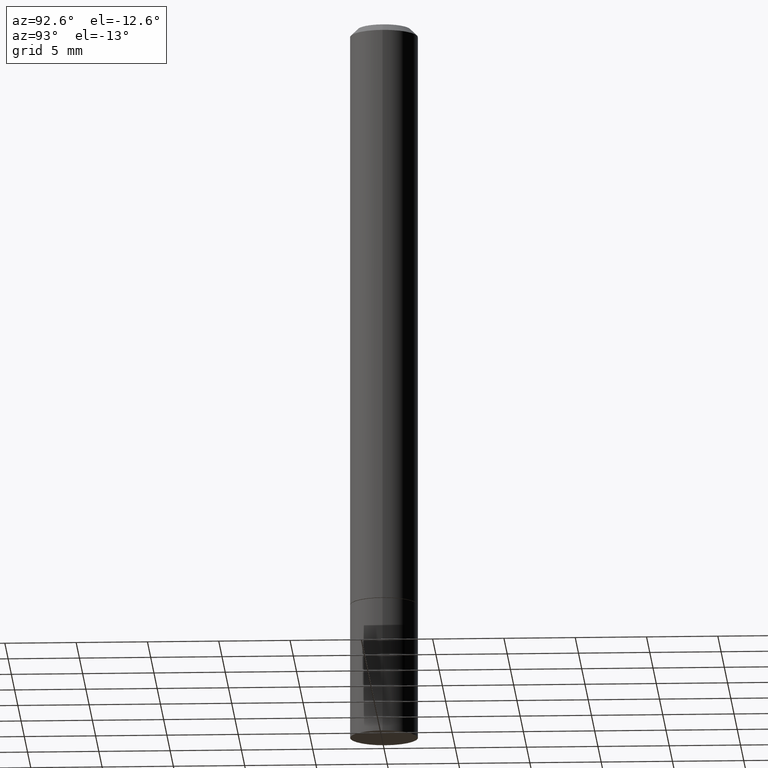
[diagram: clean part render]
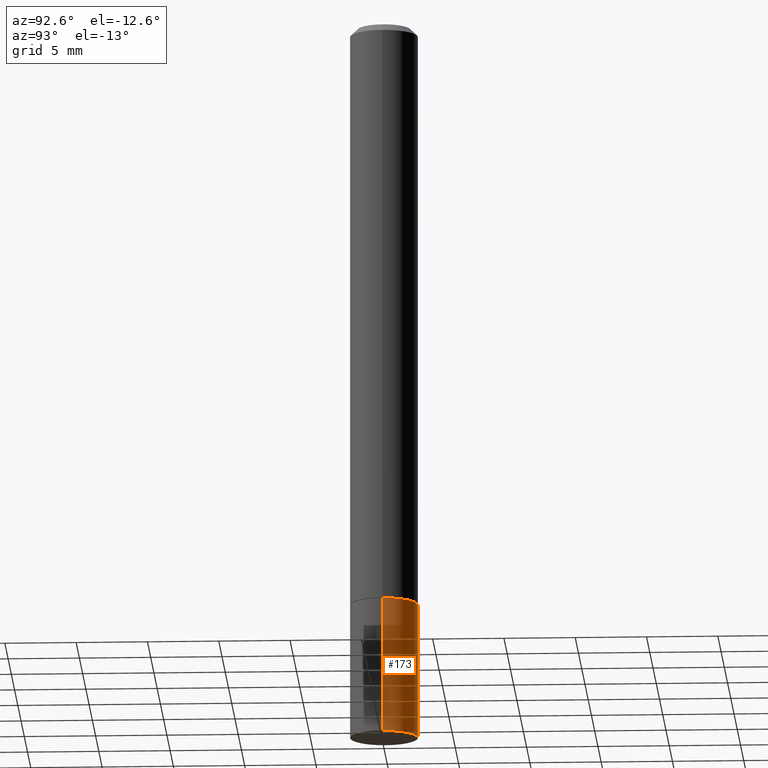
[diagram: same view with one face highlighted and labeled with its STEP entity id]
A machine part, auxiliary view. The second image highlights one B-rep face of the part: STEP entity #173.
In plain terms, the highlighted cylindrical surface (edge-blend (fillet) strip) has radius 2.3813 mm, axis along (-0, 0, 1).
Its self-contained STEP definition (entity closure, byte-faithful):
#1 = ORIENTED_EDGE ( 'NONE', *, *, #70, .F. ) ;
#4 = CARTESIAN_POINT ( 'NONE',  ( 0.09375000000000001388, -6.328309926653198928E-15, -1.625000000000000000 ) ) ;
#16 = CARTESIAN_POINT ( 'NONE',  ( 0.09375000000000001388, -6.546527510330875041E-16, 4.571415727308690506E-30 ) ) ;
#38 = FACE_OUTER_BOUND ( 'NONE', #60, .T. ) ;
#40 = CARTESIAN_POINT ( 'NONE',  ( 3.973886810050846970E-29, -5.673657175620112213E-15, -1.625000000000000000 ) ) ;
#50 = AXIS2_PLACEMENT_3D ( 'NONE', #182, #348, #266 ) ;
#52 = VERTEX_POINT ( 'NONE', #71 ) ;
#60 = EDGE_LOOP ( 'NONE', ( #256, #339, #1, #309 ) ) ;
#66 = CYLINDRICAL_SURFACE ( 'NONE', #50, 0.09375000000000001388 ) ;
#70 = EDGE_CURVE ( 'NONE', #126, #52, #106, .T. ) ;
#71 = CARTESIAN_POINT ( 'NONE',  ( -0.09375000000000001388, -5.662176111878106581E-15, -1.625000000000000000 ) ) ;
#89 = CARTESIAN_POINT ( 'NONE',  ( -0.09375000000000001388, -5.662176111878106581E-15, -2.000000000000000000 ) ) ;
#106 = CIRCLE ( 'NONE', #326, 0.09375000000000001388 ) ;
#122 = EDGE_CURVE ( 'NONE', #214, #157, #359, .T. ) ;
#126 = VERTEX_POINT ( 'NONE', #4 ) ;
#128 = LINE ( 'NONE', #16, #354 ) ;
#148 = DIRECTION ( 'NONE',  ( -2.445468806185136597E-29, 3.491481338843145583E-15, 1.000000000000000000 ) ) ;
#157 = VERTEX_POINT ( 'NONE', #89 ) ;
#173 = ADVANCED_FACE ( 'NONE', ( #38 ), #66, .T. ) ;
#177 = DIRECTION ( 'NONE',  ( -2.445468806185136597E-29, 3.491481338843145583E-15, 1.000000000000000000 ) ) ;
#182 = CARTESIAN_POINT ( 'NONE',  ( 0.000000000000000000, 0.000000000000000000, 0.000000000000000000 ) ) ;
#191 = CARTESIAN_POINT ( 'NONE',  ( 0.09375000000000001388, -7.637615428719378669E-15, -2.000000000000000000 ) ) ;
#192 = EDGE_CURVE ( 'NONE', #157, #52, #239, .T. ) ;
#193 = VECTOR ( 'NONE', #358, 39.37007874015748143 ) ;
#214 = VERTEX_POINT ( 'NONE', #191 ) ;
#223 = EDGE_CURVE ( 'NONE', #214, #126, #128, .T. ) ;
#239 = LINE ( 'NONE', #271, #193 ) ;
#253 = AXIS2_PLACEMENT_3D ( 'NONE', #321, #148, #258 ) ;
#256 = ORIENTED_EDGE ( 'NONE', *, *, #122, .T. ) ;
#258 = DIRECTION ( 'NONE',  ( 1.000000000000000000, -6.982962677686261189E-15, 0.000000000000000000 ) ) ;
#266 = DIRECTION ( 'NONE',  ( 1.000000000000000000, -6.982962677686265922E-15, 4.876176775795935793E-29 ) ) ;
#271 = CARTESIAN_POINT ( 'NONE',  ( -0.09375000000000001388, 6.661338147750940229E-16, -4.611501647113973995E-30 ) ) ;
#285 = DIRECTION ( 'NONE',  ( 1.000000000000000000, -6.982962677686261189E-15, 0.000000000000000000 ) ) ;
#309 = ORIENTED_EDGE ( 'NONE', *, *, #223, .F. ) ;
#321 = CARTESIAN_POINT ( 'NONE',  ( 4.890937612370273194E-29, -6.982962677686291165E-15, -2.000000000000000000 ) ) ;
#324 = DIRECTION ( 'NONE',  ( -2.445468806185136877E-29, 3.491481338843145188E-15, 1.000000000000000000 ) ) ;
#326 = AXIS2_PLACEMENT_3D ( 'NONE', #40, #177, #285 ) ;
#339 = ORIENTED_EDGE ( 'NONE', *, *, #192, .T. ) ;
#348 = DIRECTION ( 'NONE',  ( -2.445468806185136597E-29, 3.491481338843145583E-15, 1.000000000000000000 ) ) ;
#354 = VECTOR ( 'NONE', #324, 39.37007874015748143 ) ;
#358 = DIRECTION ( 'NONE',  ( -2.445468806185136877E-29, 3.491481338843145188E-15, 1.000000000000000000 ) ) ;
#359 = CIRCLE ( 'NONE', #253, 0.09375000000000001388 ) ;